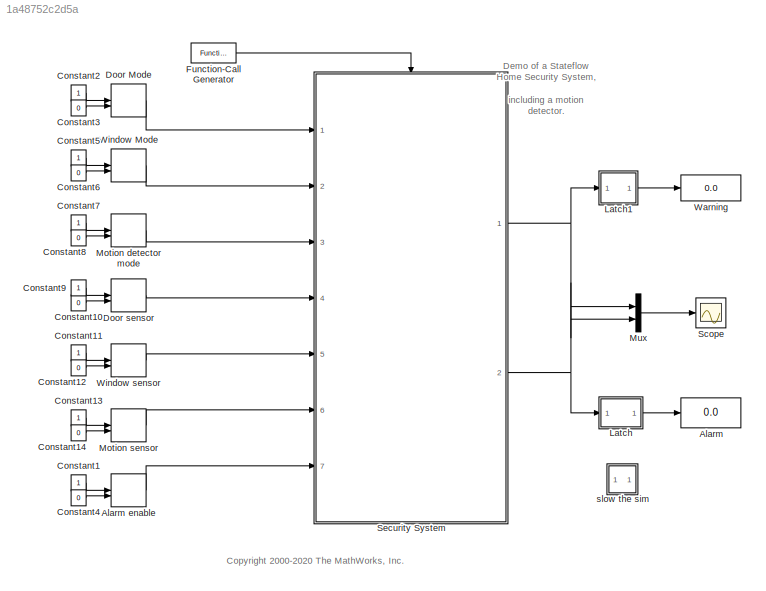
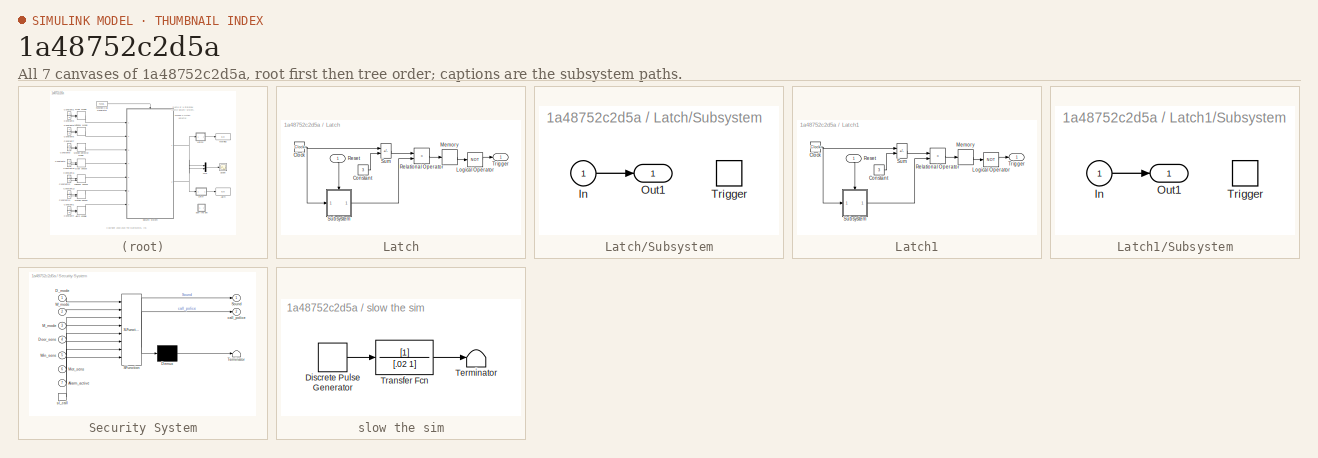
[diagram: thumbnail index - all 7 canvases of the model, root first then tree order]
MODEL slx_1a48752c2d5a
KIND model
CONFIG AbsTol = 1e-6
CONFIG EnableMultiTasking = off
CONFIG FixedStep = .0001
CONFIG MaxStep = auto
CONFIG MinStep = auto
CONFIG RelTol = 1e-3
CONFIG SampleTimeConstraint = Unconstrained
CONFIG SolverName = ode5
CONFIG StartTime = 0.0
CONFIG StopTime = 10000
BLOCK [Display] Alarm
  Decimation = 1
  Ports = [1]
BLOCK [ManualSwitch] Alarm enable
BLOCK [Constant] Constant1
  NameLocation = top
  OutDataTypeStr = boolean
BLOCK [Constant] Constant10
  NameLocation = top
  OutDataTypeStr = boolean
  Value = 0
BLOCK [Constant] Constant11
  NameLocation = top
  OutDataTypeStr = boolean
BLOCK [Constant] Constant12
  NameLocation = top
  OutDataTypeStr = boolean
  Value = 0
BLOCK [Constant] Constant13
  NameLocation = top
  OutDataTypeStr = boolean
BLOCK [Constant] Constant14
  NameLocation = top
  OutDataTypeStr = boolean
  Value = 0
BLOCK [Constant] Constant2
  NameLocation = top
  OutDataTypeStr = boolean
BLOCK [Constant] Constant3
  NameLocation = top
  OutDataTypeStr = boolean
  Value = 0
BLOCK [Constant] Constant4
  NameLocation = top
  OutDataTypeStr = boolean
  Value = 0
BLOCK [Constant] Constant5
  NameLocation = top
  OutDataTypeStr = boolean
BLOCK [Constant] Constant6
  NameLocation = top
  OutDataTypeStr = boolean
  Value = 0
BLOCK [Constant] Constant7
  NameLocation = top
  OutDataTypeStr = boolean
BLOCK [Constant] Constant8
  NameLocation = top
  OutDataTypeStr = boolean
  Value = 0
BLOCK [Constant] Constant9
  NameLocation = top
  OutDataTypeStr = boolean
BLOCK [ManualSwitch] Door Mode
BLOCK [ManualSwitch] Door sensor
  CurrentSetting = 0
BLOCK [Reference] Function-Call Generator  REF=simulink/Ports &
Subsystems/Function-Call
Generator
  Ports = [0, 1]
  SourceBlock = simulink/Ports &\nSubsystems/Function-Call\nGenerator
  SourceProductBaseCode = SL
  SourceType = Function-Call Generator
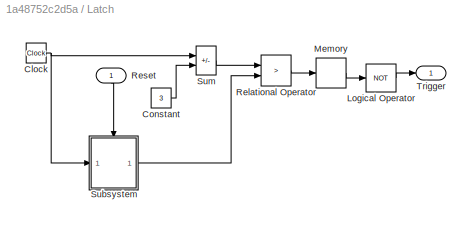
BLOCK [SubSystem] Latch
  Ports = [1, 1]
  RequestExecContextInheritance = off
BLOCK [Clock] Latch/Clock
BLOCK [Constant] Latch/Constant
  Value = 3
BLOCK [Logic] Latch/Logical Operator
  Inputs = 1
  Operator = NOT
  Ports = [1, 1]
BLOCK [Memory] Latch/Memory
  InitialCondition = 1
BLOCK [RelationalOperator] Latch/Relational Operator
  Operator = >
  Ports = [2, 1]
BLOCK [Inport] Latch/Reset
BLOCK [SubSystem] Latch/Subsystem
  Ports = [1, 1, 0, 1]
  RequestExecContextInheritance = off
BLOCK [Inport] Latch/Subsystem/In
BLOCK [Outport] Latch/Subsystem/Out1
  InitialOutput = -10
  VectorParamsAs1DForOutWhenUnconnected = off
BLOCK [TriggerPort] Latch/Subsystem/Trigger
  Ports = []
  TriggerType = either
  VariantControl = Variant
BLOCK [Sum] Latch/Sum
  IconShape = rectangular
  InputSameDT = on
  Inputs = +-
  OutDataTypeStr = Inherit: Same as first input
  Ports = [2, 1]
  SaturateOnIntegerOverflow = on
BLOCK [Outport] Latch/Trigger
  InitialOutput = 0
  VectorParamsAs1DForOutWhenUnconnected = off
BLOCK [SubSystem] Latch1
  Ports = [1, 1]
  RequestExecContextInheritance = off
BLOCK [Clock] Latch1/Clock
BLOCK [Constant] Latch1/Constant
  Value = 3
BLOCK [Logic] Latch1/Logical Operator
  Inputs = 1
  Operator = NOT
  Ports = [1, 1]
BLOCK [Memory] Latch1/Memory
  InitialCondition = 1
BLOCK [RelationalOperator] Latch1/Relational Operator
  Operator = >
  Ports = [2, 1]
BLOCK [Inport] Latch1/Reset
BLOCK [SubSystem] Latch1/Subsystem
  Ports = [1, 1, 0, 1]
  RequestExecContextInheritance = off
BLOCK [Inport] Latch1/Subsystem/In
BLOCK [Outport] Latch1/Subsystem/Out1
  InitialOutput = -10
  VectorParamsAs1DForOutWhenUnconnected = off
BLOCK [TriggerPort] Latch1/Subsystem/Trigger
  Ports = []
  TriggerType = either
  VariantControl = Variant
BLOCK [Sum] Latch1/Sum
  IconShape = rectangular
  InputSameDT = on
  Inputs = +-
  OutDataTypeStr = Inherit: Same as first input
  Ports = [2, 1]
  SaturateOnIntegerOverflow = on
BLOCK [Outport] Latch1/Trigger
  InitialOutput = 0
  VectorParamsAs1DForOutWhenUnconnected = off
BLOCK [ManualSwitch] Motion detector mode
BLOCK [ManualSwitch] Motion sensor
  CurrentSetting = 0
BLOCK [Mux] Mux
  DisplayOption = bar
  Inputs = 2
  Ports = [2, 1]
BLOCK [Scope] Scope
  Floating = off
  NumInputPorts = 1
  Ports = [1]
  ScopeSpecificationString = Simulink.scopes.TimeScopeBlockCfg('CurrentConfiguration', extmgr.ConfigurationSet(extmgr.Configuration('Core','General UI',true),extmgr.Configuration('Core','Source UI',true),extmgr.Configuration('Sources','WiredSimulink',true,'DataLogging',true,'DataLoggingSaveFormat','Structure','DataLoggingLimitDataPoints',true,'DataLoggingDecimation','1','DataLoggingDecimateData',true),extmgr.Configuration('Vi...<+1671ch>
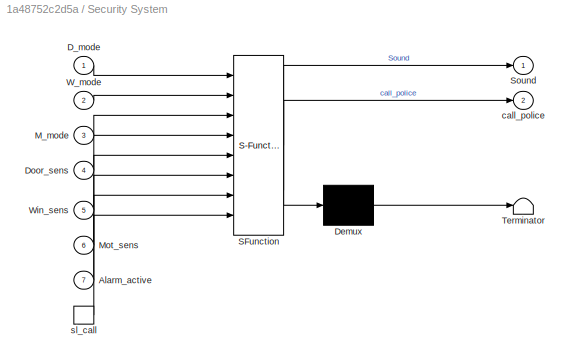
BLOCK [SubSystem] Security System
  ErrorFcn = Stateflow.Translate.translate
  PermitHierarchicalResolution = ExplicitOnly
  Ports = [7, 2, 0, 1]
  RequestExecContextInheritance = off
  SFBlockType = Chart
  TreatAsAtomicUnit = on
BLOCK [Demux] Security System/ Demux 
  Outputs = 1
  Ports = [1, 1]
BLOCK [S-Function] Security System/ SFunction 
  EnableBusSupport = off
  FunctionName = sf_sfun
  PortCounts = [8 3]
  Ports = [8, 3]
  SFcnIsStateOwnerBlock = off
  SFunctionDeploymentMode = off
  Tag = Stateflow S-Function 1
BLOCK [Terminator] Security System/ Terminator 
BLOCK [Inport] Security System/Alarm_active
  Port = 7
BLOCK [Inport] Security System/D_mode
BLOCK [Inport] Security System/Door_sens
  Port = 4
BLOCK [Inport] Security System/M_mode
  Port = 3
BLOCK [Inport] Security System/Mot_sens
  Port = 6
BLOCK [Outport] Security System/Sound
  VectorParamsAs1DForOutWhenUnconnected = off
BLOCK [Inport] Security System/W_mode
  Port = 2
BLOCK [Inport] Security System/Win_sens
  Port = 5
BLOCK [Outport] Security System/call_police
  Port = 2
  VectorParamsAs1DForOutWhenUnconnected = off
BLOCK [TriggerPort] Security System/sl_call
  Ports = [0, 1]
  ShowOutputPort = on
  TriggerType = function-call
  VariantControl = Variant
BLOCK [Display] Warning
  Decimation = 1
  Ports = [1]
BLOCK [ManualSwitch] Window Mode
BLOCK [ManualSwitch] Window sensor
  CurrentSetting = 0
BLOCK [SubSystem] slow the sim
  Ports = []
  RequestExecContextInheritance = off
BLOCK [DiscretePulseGenerator] slow the sim/Discrete Pulse Generator
  Ports = [0, 1]
  SampleTime = 0.1
BLOCK [Terminator] slow the sim/Terminator
BLOCK [TransferFcn] slow the sim/Transfer Fcn
  Denominator = [.02 1]
ANNOTATION (root): <copyright redacted>
ANNOTATION (root): Demo of a Stateflow Home Security System, including a motion detector.
LINE Alarm enable:1 -> Security System:7
LINE Constant10:1 -> Door sensor:2
LINE Constant11:1 -> Window sensor:1
LINE Constant12:1 -> Window sensor:2
LINE Constant13:1 -> Motion sensor:1
LINE Constant14:1 -> Motion sensor:2
LINE Constant1:1 -> Alarm enable:1
LINE Constant2:1 -> Door Mode:1
LINE Constant3:1 -> Door Mode:2
LINE Constant4:1 -> Alarm enable:2
LINE Constant5:1 -> Window Mode:1
LINE Constant6:1 -> Window Mode:2
LINE Constant7:1 -> Motion detector mode:1
LINE Constant8:1 -> Motion detector mode:2
LINE Constant9:1 -> Door sensor:1
LINE Door Mode:1 -> Security System:1
LINE Door sensor:1 -> Security System:4
LINE Function-Call Generator:1 -> Security System:trigger
NET Latch/Clock:1 -> Latch/Subsystem:1, Latch/Sum:1
LINE Latch/Constant:1 -> Latch/Sum:2
LINE Latch/Logical Operator:1 -> Latch/Trigger:1
LINE Latch/Memory:1 -> Latch/Logical Operator:1
LINE Latch/Relational Operator:1 -> Latch/Memory:1
LINE Latch/Reset:1 -> Latch/Subsystem:trigger
LINE Latch/Subsystem/In:1 -> Latch/Subsystem/Out1:1
LINE Latch/Subsystem:1 -> Latch/Relational Operator:2
LINE Latch/Sum:1 -> Latch/Relational Operator:1
NET Latch1/Clock:1 -> Latch1/Subsystem:1, Latch1/Sum:1
LINE Latch1/Constant:1 -> Latch1/Sum:2
LINE Latch1/Logical Operator:1 -> Latch1/Trigger:1
LINE Latch1/Memory:1 -> Latch1/Logical Operator:1
LINE Latch1/Relational Operator:1 -> Latch1/Memory:1
LINE Latch1/Reset:1 -> Latch1/Subsystem:trigger
LINE Latch1/Subsystem/In:1 -> Latch1/Subsystem/Out1:1
LINE Latch1/Subsystem:1 -> Latch1/Relational Operator:2
LINE Latch1/Sum:1 -> Latch1/Relational Operator:1
LINE Latch1:1 -> Warning:1
LINE Latch:1 -> Alarm:1
LINE Motion detector mode:1 -> Security System:3
LINE Motion sensor:1 -> Security System:6
LINE Mux:1 -> Scope:1
NET Security System:1 -> Latch1:1, Mux:1
NET Security System:2 -> Latch:1, Mux:2
LINE Window Mode:1 -> Security System:2
LINE Window sensor:1 -> Security System:5
LINE slow the sim/Discrete Pulse Generator:1 -> slow the sim/Transfer Fcn:1
LINE slow the sim/Transfer Fcn:1 -> slow the sim/Terminator:1
note: NET lines group one-source signal fan-out (src -> all destinations, sorted); 1:1 wires keep LINE
CHART Security System states=19 transitions=20
  STATE_LABEL 'The Door and Win states model anti-intrusion sensors at a window and a \ndoor. When these sensors are active, the corresponding states check the \nvalue of D_mode and W_mode. If one of these variables is true, the states \nbroadcast a local event to the Alarm state.'
  STATE_LABEL 'Input from the motion sensor can be sporadic, so a \ndebouncing state is used. The debouncing state \nremains active while Mot_sens is true. After a delay \nperiod, the debouncing state broadcasts a local \nevent to the Alert state.'
  STATE_LABEL 'Motion'
  STATE_LABEL 'Active'
  STATE_LABEL 'Debouncing'
  STATE_LABEL 'Idle'
  STATE_LABEL 'after(1/tSample,sl_call)\n[in(Alarm.On.Idle)] /{\nsend(Alert,Alarm);}'
  STATE_LABEL '[~Mot_sens]'
  STATE_LABEL '[Mot_sens]'
  STATE_LABEL 'Disabled'
  STATE_LABEL '[M_mode==1]'
  STATE_LABEL '[M_mode==0]'
  STATE_LABEL 'Active'
  STATE_LABEL 'Debouncing'
  STATE_LABEL 'Idle'
  STATE_LABEL 'after(1/tSample,sl_call)\n[in(Alarm.On.Idle)] /{\nsend(Alert,Alarm);}'
  STATE_LABEL '[~Mot_sens]'
  STATE_LABEL '[Mot_sens]'
  STATE_LABEL 'Debouncing'
  STATE_LABEL 'Idle'
  STATE_LABEL 'Disabled'
  STATE_LABEL 'Door'
  STATE_LABEL 'Disabled'
  STATE_LABEL 'Active'
  STATE_LABEL '[Door_sens && ...\n in(Alarm.On.Idle)]\n{send(Alert,Alarm);}'
  STATE_LABEL '[D_mode==1]'
  STATE_LABEL '[D_mode==0]'
  STATE_LABEL 'Disabled'
  STATE_LABEL 'Active'
  STATE_LABEL '[Door_sens && ...\n in(Alarm.On.Idle)]\n{send(Alert,Alarm);}'
  STATE_LABEL 'Win'
  STATE_LABEL 'Disabled'
  STATE_LABEL 'Active'
  STATE_LABEL '[Win_sens && ...\nin(Alarm.On.Idle)]\n{send(Alert,Alarm);}'
  STATE_LABEL '[W_mode==1]'
  STATE_LABEL '[W_mode==0]'
  STATE_LABEL 'Disabled'
  STATE_LABEL 'Active'
  STATE_LABEL '[Win_sens && ...\nin(Alarm.On.Idle)]\n{send(Alert,Alarm);}'
  STATE_LABEL 'Alarm'
CHART  states=0 transitions=0
